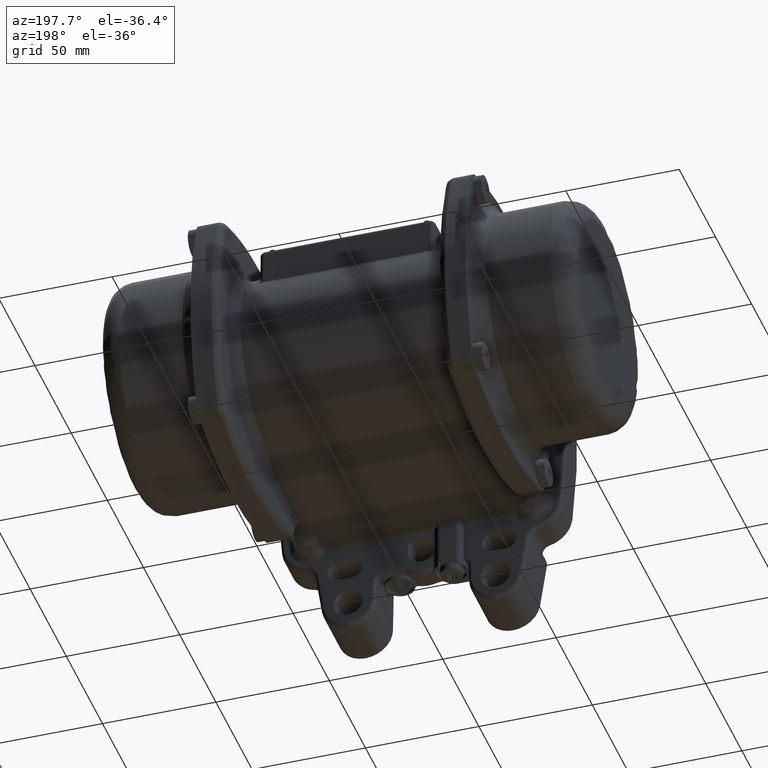
[diagram: clean part render]
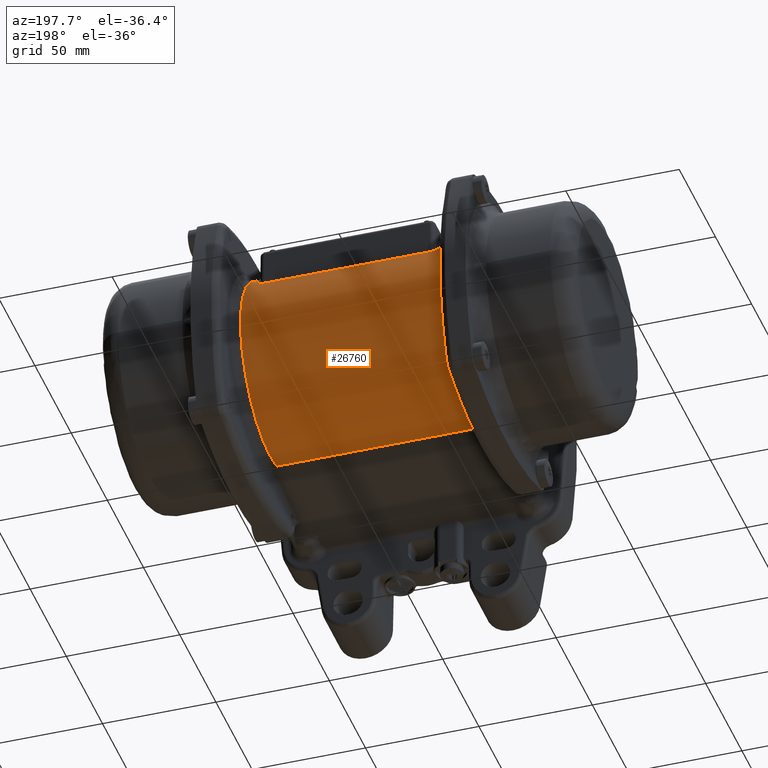
[diagram: same view with one face highlighted and labeled with its STEP entity id]
A machine part, auxiliary view. The second image highlights one B-rep face of the part: STEP entity #26760.
In plain terms, the highlighted cylindrical surface (partial cylindrical patch) has radius 41 mm, axis along (1, -0, -0).
Its self-contained STEP definition (entity closure, byte-faithful):
#649 = CARTESIAN_POINT ( 'NONE',  ( -38.60708220774924400, -0.9340773882883759400, 40.99999999999997900 ) ) ;
#1771 = CARTESIAN_POINT ( 'NONE',  ( -39.45027125699233000, 7.287984657818571900, 40.35493857515928100 ) ) ;
#1824 = AXIS2_PLACEMENT_3D ( 'NONE', #27214, #128052, #70123 ) ;
#2017 = B_SPLINE_CURVE_WITH_KNOTS ( 'NONE', 3,
 ( #46109, #89569, #132009, #4394, #18646, #59820, #130798, #3185, #102736, #60430, #159943, #74707, #77164, #21121, #62864, #164222, #21739, #162376, #64716, #36069, #178534, #78393, #163005, #93266, #78998, #120724, #49777, #133809, #8040, #121349, #177293, #106399, #176685, #107591, #135663, #22354, #79632 ),
 .UNSPECIFIED., .F., .F.,
 ( 4, 2, 2, 1, 1, 1, 1, 1, 2, 2, 2, 1, 1, 1, 1, 1, 2, 2, 2, 2, 2, 1, 2, 4 ),
 ( 0.0000000000000000000, 0.1250000000000511000, 0.1875000000000764900, 0.2187500000000893700, 0.2343750000000957800, 0.2421875000000988900, 0.2460937500001007500, 0.2480468750001017800, 0.2490234375001018900, 0.2500000000001019700, 0.3750000000001117400, 0.4375000000001166300, 0.4687500000001190700, 0.4843750000001204000, 0.4921875000001209000, 0.4960937500001212900, 0.4980468750001213500, 0.5000000000001213500, 0.6250000000000900400, 0.6875000000000741600, 0.7031250000000703900, 0.7187500000000665000, 0.7500000000000588400, 1.000000000000000000 ),
 .UNSPECIFIED. ) ;
#2258 = B_SPLINE_CURVE_WITH_KNOTS ( 'NONE', 3,
 ( #96974, #167316, #83312, #169142, #68403, #183511, #98215, #124494, #84545, #70242, #25471, #125099, #67801, #12986, #126934, #95771 ),
 .UNSPECIFIED., .F., .F.,
 ( 4, 2, 2, 1, 1, 1, 1, 2, 2, 4 ),
 ( 0.0000000000000000000, 0.2499999999999787900, 0.3749999999999680800, 0.4374999999999630300, 0.4687499999999606400, 0.4843749999999595900, 0.4921874999999581400, 0.4960937499999577600, 0.4999999999999573700, 1.000000000000000000 ),
 .UNSPECIFIED. ) ;
#2288 = CARTESIAN_POINT ( 'NONE',  ( -39.71057046456030500, -8.626517569722269100, 40.08229354704110400 ) ) ;
#3185 = CARTESIAN_POINT ( 'NONE',  ( 38.73754287274762500, -2.051644284662081500, 40.94865646563531000 ) ) ;
#3397 = CARTESIAN_POINT ( 'NONE',  ( 39.69347731338803000, -8.544330602705279900, 40.09980566725569400 ) ) ;
#3555 = EDGE_CURVE ( 'NONE', #75312, #170911, #2017, .T. ) ;
#4090 = CARTESIAN_POINT ( 'NONE',  ( -40.25993453157548900, 11.75081116651704400, 39.28000129041638600 ) ) ;
#4394 = CARTESIAN_POINT ( 'NONE',  ( 38.66658297917581400, -1.445213444509238200, 40.97491586174172100 ) ) ;
#4418 = CARTESIAN_POINT ( 'NONE',  ( -36.63564336271020500, 33.02453798264286900, 24.29773427776708800 ) ) ;
#4927 = CARTESIAN_POINT ( 'NONE',  ( -39.12898374515355500, 32.17546672250782800, 25.41140731056852800 ) ) ;
#5559 = CARTESIAN_POINT ( 'NONE',  ( -39.00835738963211700, 32.26881057474589900, 25.29311772478809300 ) ) ;
#6764 = CARTESIAN_POINT ( 'NONE',  ( -38.63982266128448400, 32.50285782251592800, 24.99138136832928600 ) ) ;
#7620 = CARTESIAN_POINT ( 'NONE',  ( 37.19832322529099100, 32.98694223160909200, 24.34875545878459500 ) ) ;
#8040 = CARTESIAN_POINT ( 'NONE',  ( 39.21495667097355000, -5.757405661419554100, 40.59407596242783700 ) ) ;
#8221 = CARTESIAN_POINT ( 'NONE',  ( 36.63564336271021900, 33.02453798264285500, 24.29773427776707000 ) ) ;
#8841 = CARTESIAN_POINT ( 'NONE',  ( 39.09204151790564900, 32.20395850700653300, 25.37528973501602500 ) ) ;
#8844 = CARTESIAN_POINT ( 'NONE',  ( -40.57475486878562500, 27.07420599103590000, 30.93370843594886900 ) ) ;
#9434 = CARTESIAN_POINT ( 'NONE',  ( -39.44847065372786700, -7.278032643407048100, 40.35686584913624100 ) ) ;
#9464 = CARTESIAN_POINT ( 'NONE',  ( 40.59838397106191400, 29.62483085586199000, 28.35111769623385000 ) ) ;
#9522 = CARTESIAN_POINT ( 'NONE',  ( 44.14511888885273500, -8.790728436023332600, -40.04651162790698000 ) ) ;
#10051 = CARTESIAN_POINT ( 'NONE',  ( -39.22247937615304600, -5.809387017558180800, 40.58677639094410200 ) ) ;
#10431 = CARTESIAN_POINT ( 'NONE',  ( 39.27415188788697300, 6.156027150346739400, 40.53521307871455500 ) ) ;
#10667 = CARTESIAN_POINT ( 'NONE',  ( -39.29157628440914600, -6.271409692527957900, 40.51767199528990200 ) ) ;
#10693 = LINE ( 'NONE', #42279, #166558 ) ;
#11637 = CARTESIAN_POINT ( 'NONE',  ( 39.29161728950060700, 6.271678657600948400, 40.51763032736632700 ) ) ;
#11742 = CARTESIAN_POINT ( 'NONE',  ( -39.06737950640841500, 4.700115830812914700, 40.73162303545759500 ) ) ;
#11832 = VERTEX_POINT ( 'NONE', #13359 ) ;
#12264 = CARTESIAN_POINT ( 'NONE',  ( 39.30906355492928100, 6.385195820743160900, 40.49986878538031500 ) ) ;
#12363 = CARTESIAN_POINT ( 'NONE',  ( -38.68570407094574600, 1.609515190667632400, 40.96866651549448300 ) ) ;
#12497 = CARTESIAN_POINT ( 'NONE',  ( -38.76089191830179500, -2.247015252834524200, 40.93839322025121400 ) ) ;
#12570 = DIRECTION ( 'NONE',  ( 1.000000000000000000, -2.784061241712093500E-016, -1.387778780781444600E-017 ) ) ;
#12972 = CARTESIAN_POINT ( 'NONE',  ( -39.01482737209057900, 4.297168353314922300, 40.77418753368952800 ) ) ;
#12986 = CARTESIAN_POINT ( 'NONE',  ( 40.13163243657442800, 10.80252752720041300, 39.56465057074500200 ) ) ;
#13359 = CARTESIAN_POINT ( 'NONE',  ( -38.49999999999998600, -1.257183224816079200E-013, 40.99999999999998600 ) ) ;
#13551 = VECTOR ( 'NONE', #113343, 1000.000000000000000 ) ;
#14324 = CARTESIAN_POINT ( 'NONE',  ( -38.75113301028474700, -2.164786475184294500, 40.94281023096501600 ) ) ;
#14733 = CARTESIAN_POINT ( 'NONE',  ( -39.69347731338807300, -8.544330602705263900, 40.09980566725569400 ) ) ;
#15331 = CARTESIAN_POINT ( 'NONE',  ( 38.79210752469145300, 2.508782898045377200, 40.92338156037178700 ) ) ;
#18258 = EDGE_CURVE ( 'NONE', #106841, #99078, #178094, .T. ) ;
#18646 = CARTESIAN_POINT ( 'NONE',  ( 38.68570407423676000, -1.609515218935069900, 40.96866651436524600 ) ) ;
#19401 = CARTESIAN_POINT ( 'NONE',  ( 40.50857455859753700, 14.98236234376840400, 38.16449683410000700 ) ) ;
#19826 = CARTESIAN_POINT ( 'NONE',  ( -38.46142291735794300, 32.59652106300797000, 24.86899380024934900 ) ) ;
#20206 = CARTESIAN_POINT ( 'NONE',  ( -40.26286705446739900, 11.77235702724718700, 39.27354965194230400 ) ) ;
#20253 = VERTEX_POINT ( 'NONE', #27524 ) ;
#20798 = CIRCLE ( 'NONE', #1824, 40.99999999999997900 ) ;
#21066 = CARTESIAN_POINT ( 'NONE',  ( -36.63564336271020500, 33.02453798264286900, 24.29773427776708800 ) ) ;
#21121 = CARTESIAN_POINT ( 'NONE',  ( 38.74975827312260200, -2.154940588891327100, 40.94332962552280000 ) ) ;
#21314 = CARTESIAN_POINT ( 'NONE',  ( 37.88174637271190900, 32.83467384047703100, 24.55384244578916200 ) ) ;
#21490 = VECTOR ( 'NONE', #70372, 1000.000000000000000 ) ;
#21739 = CARTESIAN_POINT ( 'NONE',  ( 38.90979390786052500, -3.473589406481656800, 40.85298588975653900 ) ) ;
#22354 = CARTESIAN_POINT ( 'NONE',  ( 39.57239271841103100, -7.968513426987492200, 40.22249883831182200 ) ) ;
#22546 = CARTESIAN_POINT ( 'NONE',  ( 38.31520629861852000, 32.66625616399503700, 24.77734590616100600 ) ) ;
#23176 = CARTESIAN_POINT ( 'NONE',  ( 39.61899912587594500, 31.72000177052054700, 25.97771781145410200 ) ) ;
#23800 = CARTESIAN_POINT ( 'NONE',  ( 39.65083779141532700, 31.68435636038741900, 26.02118101066755800 ) ) ;
#24374 = CARTESIAN_POINT ( 'NONE',  ( -39.25553339753611200, -6.032019540604348000, 40.55388530464047400 ) ) ;
#24964 = CARTESIAN_POINT ( 'NONE',  ( -39.26450961562329700, -6.091941491601558000, 40.54489676008290600 ) ) ;
#25357 = CARTESIAN_POINT ( 'NONE',  ( 39.01778356756366900, 4.319833396682680500, 40.77179267318739200 ) ) ;
#25435 = CARTESIAN_POINT ( 'NONE',  ( 70.50000000000000000, -2.039534987732066000E-014, -9.783840404509176200E-016 ) ) ;
#25455 = CARTESIAN_POINT ( 'NONE',  ( -38.79746280871717100, 2.557511731065350800, 40.92211062113733500 ) ) ;
#25471 = CARTESIAN_POINT ( 'NONE',  ( 40.26977654820432700, 11.82354501429634800, 39.25816953174909700 ) ) ;
#26066 = CARTESIAN_POINT ( 'NONE',  ( -39.21495667130652400, 5.757405663960582800, 40.59407596206114000 ) ) ;
#26760 = ADVANCED_FACE ( 'NONE', ( #84982 ), #151813, .T. ) ;
#26984 = LINE ( 'NONE', #184278, #13551 ) ;
#27214 = CARTESIAN_POINT ( 'NONE',  ( 44.14511888885273500, -1.305798957417314100E-014, -6.126365926902397800E-016 ) ) ;
#27215 = CARTESIAN_POINT ( 'NONE',  ( 39.57147129445984000, 7.964131609964170800, 40.22343250102324700 ) ) ;
#27524 = CARTESIAN_POINT ( 'NONE',  ( 39.69347731338784500, 8.544330602705320700, 40.09980566725569400 ) ) ;
#28548 = CARTESIAN_POINT ( 'NONE',  ( -39.24477876744990800, 5.959605327242024400, 40.56457536500374800 ) ) ;
#29290 = CARTESIAN_POINT ( 'NONE',  ( -38.77135033993121000, -2.334932738104302800, 40.93351311541709200 ) ) ;
#30279 = CARTESIAN_POINT ( 'NONE',  ( 38.76088447942417000, 2.246952659668281600, 40.93839666203243900 ) ) ;
#30377 = CARTESIAN_POINT ( 'NONE',  ( -39.31171813620748900, 6.402298441943920600, 40.49716667674795200 ) ) ;
#30667 = B_SPLINE_CURVE_WITH_KNOTS ( 'NONE', 3,
 ( #39945, #38721, #9434, #182400, #10667, #125839, #51775, #66095, #24964, #24374, #10051, #38101, #179943, #109625, #67306, #166829, #181162, #54825, #55443, #84063, #69134, #154380, #170503, #169883, #56677, #98966, #168647, #29290, #12497, #183624, #142539, #171119, #14324, #84652, #126458, #649, #128892 ),
 .UNSPECIFIED., .F., .F.,
 ( 4, 2, 1, 2, 2, 1, 1, 1, 2, 1, 1, 1, 1, 2, 2, 2, 2, 1, 1, 1, 1, 1, 2, 2, 4 ),
 ( 0.0000000000000000000, 0.2500000000000099400, 0.2812500000000111600, 0.2851562500000113200, 0.2890625000000114900, 0.2968750000000118200, 0.3125000000000121000, 0.3750000000000142100, 0.4375000000000163800, 0.4687500000000174900, 0.4843750000000180400, 0.4921875000000180400, 0.4960937500000180400, 0.4980468750000178200, 0.5000000000000175400, 0.6249999999999970000, 0.6874999999999867900, 0.7187499999999815700, 0.7343749999999790200, 0.7421874999999779100, 0.7460937499999774600, 0.7480468749999773500, 0.7490234374999773500, 0.7499999999999773500, 1.000000000000000000 ),
 .UNSPECIFIED. ) ;
#30818 = VERTEX_POINT ( 'NONE', #85125 ) ;
#31107 = CARTESIAN_POINT ( 'NONE',  ( -39.69651290171216100, 31.63165759376250500, 26.08521686242807600 ) ) ;
#32081 = CARTESIAN_POINT ( 'NONE',  ( -40.17375410760075000, 11.15529437300573100, 39.45348277531642400 ) ) ;
#32817 = B_SPLINE_CURVE_WITH_KNOTS ( 'NONE', 3,
 ( #138647, #27215, #41520, #12264, #11637, #10431, #110010, #111836, #110622, #152948, #53378, #139859, #126227, #154140, #40907, #167198, #111231, #81981, #181547, #25357, #124987, #39725, #55205, #154753, #169029, #83825, #15331, #114918, #30279, #42732, #128662, #170261, #113048, #142306, #127424, #114283, #157206 ),
 .UNSPECIFIED., .F., .F.,
 ( 4, 2, 1, 2, 2, 1, 1, 1, 2, 1, 1, 1, 1, 2, 2, 2, 2, 1, 1, 1, 1, 1, 2, 2, 4 ),
 ( 0.0000000000000000000, 0.2499999999999867300, 0.2812499999999851200, 0.2851562499999854000, 0.2890624999999857300, 0.2968749999999862300, 0.3124999999999874000, 0.3749999999999912800, 0.4374999999999952300, 0.4687499999999973400, 0.4843749999999985000, 0.4921874999999991100, 0.4960937499999994400, 0.4980468749999994400, 0.4999999999999994400, 0.6250000000000087700, 0.6875000000000134300, 0.7187500000000155400, 0.7343750000000165400, 0.7421875000000171000, 0.7460937500000174300, 0.7480468750000175400, 0.7490234375000177600, 0.7500000000000178700, 1.000000000000000000 ),
 .UNSPECIFIED. ) ;
#33307 = CARTESIAN_POINT ( 'NONE',  ( -39.92647421244653600, 9.695864949478997000, 39.84094083127503400 ) ) ;
#33476 = CARTESIAN_POINT ( 'NONE',  ( -39.69347731338805800, 8.544330602705292300, 40.09980566725569400 ) ) ;
#33539 = CARTESIAN_POINT ( 'NONE',  ( -37.94852506852241400, 32.81064710075123300, 24.58583290489226400 ) ) ;
#34159 = CARTESIAN_POINT ( 'NONE',  ( -37.61025059253405100, 32.90792599897423500, 24.45543841075616200 ) ) ;
#35028 = CARTESIAN_POINT ( 'NONE',  ( -40.51767814303129000, 17.51601659702738800, 37.16985183088752400 ) ) ;
#35642 = CARTESIAN_POINT ( 'NONE',  ( 39.35850370813031400, 31.98634657025034800, 25.64968077611050400 ) ) ;
#36069 = CARTESIAN_POINT ( 'NONE',  ( 38.99795572375313700, -4.167308703747819400, 40.78769909457645300 ) ) ;
#36727 = CARTESIAN_POINT ( 'NONE',  ( 39.74475676690480700, -8.790728436023330900, 40.04651162790698000 ) ) ;
#36974 = CARTESIAN_POINT ( 'NONE',  ( -40.59418964722900800, 29.17134930590384200, 28.81028253372296900 ) ) ;
#37321 = CARTESIAN_POINT ( 'NONE',  ( 40.57475486878562500, 27.07420599103744500, 30.93370843594727400 ) ) ;
#37498 = CARTESIAN_POINT ( 'NONE',  ( 38.67240964777513300, 32.48577692673543300, 25.01375181052317800 ) ) ;
#37501 = CARTESIAN_POINT ( 'NONE',  ( -40.59418964722900800, 29.17134930590384200, 28.81028253372296900 ) ) ;
#38101 = CARTESIAN_POINT ( 'NONE',  ( -39.16762067718053700, -5.429145660511761800, 40.64009700688113500 ) ) ;
#38575 = CARTESIAN_POINT ( 'NONE',  ( 40.51767814303131800, 17.51601659702942000, 37.16985183088672800 ) ) ;
#38721 = CARTESIAN_POINT ( 'NONE',  ( -39.57145704133638000, -7.964063827614246800, 40.22344694385650900 ) ) ;
#38997 = B_SPLINE_CURVE_WITH_KNOTS ( 'NONE', 3,
 ( #72824, #171734, #117589, #115159, #144374, #172350, #101444, #158667, #173557, #172966, #87704, #102063, #116381, #31107, #59759, #88307, #47874, #147428, #175377, #106345, #146819, #105111, #148064, #4927, #5559, #90139, #77721, #6764, #177241, #49109, #19826, #89510, #160503, #176006, #90752, #33539, #47257, #91964, #103881, #120665, #34159, #60979, #118210, #21066 ),
 .UNSPECIFIED., .F., .F.,
 ( 4, 1, 1, 2, 2, 2, 1, 1, 1, 2, 2, 2, 1, 1, 2, 2, 2, 1, 1, 1, 2, 2, 2, 1, 1, 2, 2, 4 ),
 ( 0.0000000000000000000, 0.1250000000000033600, 0.1875000000000045800, 0.2187500000000052200, 0.2500000000000058300, 0.3750000000000082700, 0.4375000000000091600, 0.4687500000000091000, 0.4843750000000087200, 0.4921875000000073300, 0.5000000000000058800, 0.5624999999999813500, 0.5937499999999691400, 0.6093749999999635800, 0.6171874999999620300, 0.6249999999999604800, 0.6874999999999507100, 0.7187499999999458200, 0.7343749999999433800, 0.7421874999999432700, 0.7460937499999434900, 0.7499999999999436000, 0.8124999999999628100, 0.8437499999999711300, 0.8593749999999759100, 0.8671874999999773500, 0.8749999999999787900, 1.000000000000000000 ),
 .UNSPECIFIED. ) ;
#39426 = LINE ( 'NONE', #72827, #21490 ) ;
#39725 = CARTESIAN_POINT ( 'NONE',  ( 38.97575799406113400, 3.997614464274982900, 40.80583510462895400 ) ) ;
#39945 = CARTESIAN_POINT ( 'NONE',  ( -39.69347731338807300, -8.544330602705263900, 40.09980566725569400 ) ) ;
#40907 = CARTESIAN_POINT ( 'NONE',  ( 39.06099969178014000, 4.648038183373663500, 40.73588216817101000 ) ) ;
#41005 = CARTESIAN_POINT ( 'NONE',  ( -38.74392969543831800, 2.105701051483206400, 40.94589633517638600 ) ) ;
#41298 = ORIENTED_EDGE ( 'NONE', *, *, #75892, .T. ) ;
#41520 = CARTESIAN_POINT ( 'NONE',  ( 39.44849759882140500, 7.278181499583124200, 40.35683710852317300 ) ) ;
#41990 = EDGE_CURVE ( 'NONE', #87641, #11832, #30667, .T. ) ;
#42228 = CARTESIAN_POINT ( 'NONE',  ( -38.73754287176370800, 2.051644276234249300, 40.94865646606061900 ) ) ;
#42279 = CARTESIAN_POINT ( 'NONE',  ( 70.50000000000000000, -8.790728436023361100, -40.04651162790698000 ) ) ;
#42732 = CARTESIAN_POINT ( 'NONE',  ( 38.75563417156801200, 2.202736153180403300, 40.94078937609189900 ) ) ;
#44671 = CARTESIAN_POINT ( 'NONE',  ( -39.28860164782581400, 6.252183757084171800, 40.52072086570232300 ) ) ;
#46109 = CARTESIAN_POINT ( 'NONE',  ( 38.49999999999876400, -1.566433935815058200E-011, 40.99999999999998600 ) ) ;
#47207 = ORIENTED_EDGE ( 'NONE', *, *, #91563, .T. ) ;
#47257 = CARTESIAN_POINT ( 'NONE',  ( -37.84249337173225300, 32.84530427431204900, 24.53952135662269600 ) ) ;
#47874 = CARTESIAN_POINT ( 'NONE',  ( -39.57597112766583800, 31.76970378868847100, 25.91732742592306600 ) ) ;
#49064 = EDGE_CURVE ( 'NONE', #134206, #135680, #38997, .T. ) ;
#49109 = CARTESIAN_POINT ( 'NONE',  ( -38.48396794957381000, 32.58523095825459800, 24.88378980366828200 ) ) ;
#49777 = CARTESIAN_POINT ( 'NONE',  ( 39.11745811475276500, -5.069913957446243700, 40.68683160676714300 ) ) ;
#49977 = CARTESIAN_POINT ( 'NONE',  ( 39.58758038956668200, 31.75459740881647600, 25.93545537517492100 ) ) ;
#50571 = CARTESIAN_POINT ( 'NONE',  ( 36.95863281964187100, 33.01510764557542600, 24.31056700046104200 ) ) ;
#51185 = CARTESIAN_POINT ( 'NONE',  ( 38.55479190938039800, 32.55089507741892900, 24.92887488330063700 ) ) ;
#51775 = CARTESIAN_POINT ( 'NONE',  ( -39.27022736886506500, -6.129988235297320300, 40.53915901801514100 ) ) ;
#51810 = CARTESIAN_POINT ( 'NONE',  ( 40.20716430864455800, 30.86466722911807300, 26.98918267815681600 ) ) ;
#53378 = CARTESIAN_POINT ( 'NONE',  ( 39.22252468042721300, 5.809699607041161500, 40.58673157787753600 ) ) ;
#54071 = CARTESIAN_POINT ( 'NONE',  ( -38.99795572340488500, 4.167308701076632500, 40.78769909485063700 ) ) ;
#54825 = CARTESIAN_POINT ( 'NONE',  ( -39.02175630782706900, -4.350248813407512600, 40.76856145336100200 ) ) ;
#55205 = CARTESIAN_POINT ( 'NONE',  ( 38.93339949477871900, 3.663612693261331500, 40.83756941394796800 ) ) ;
#55443 = CARTESIAN_POINT ( 'NONE',  ( -39.01934455250081900, -4.331788406593539700, 40.77052424928094600 ) ) ;
#56448 = ORIENTED_EDGE ( 'NONE', *, *, #140120, .T. ) ;
#56537 = CARTESIAN_POINT ( 'NONE',  ( -38.90979390658641500, 3.473589396696874500, 40.85298589058851300 ) ) ;
#56677 = CARTESIAN_POINT ( 'NONE',  ( -38.84430152115804400, -2.941112845759174200, 40.89482307228210100 ) ) ;
#56746 = CARTESIAN_POINT ( 'NONE',  ( -44.14511888885248700, 1.152255332767226000E-014, 6.126365926902362300E-016 ) ) ;
#59759 = CARTESIAN_POINT ( 'NONE',  ( -39.67758907607856900, 31.65371836832520100, 26.05844228551827200 ) ) ;
#59820 = CARTESIAN_POINT ( 'NONE',  ( 38.71180134995319800, -1.832679843225847300, 40.95908725049358900 ) ) ;
#60125 = CARTESIAN_POINT ( 'NONE',  ( -40.25678212843524100, 11.72772185596919700, 39.28690611677018300 ) ) ;
#60430 = CARTESIAN_POINT ( 'NONE',  ( 38.74705244126668200, -2.132093229958663500, 40.94452681870773600 ) ) ;
#60930 = EDGE_CURVE ( 'NONE', #20253, #75312, #32817, .T. ) ;
#60979 = CARTESIAN_POINT ( 'NONE',  ( -37.27685669276446800, 32.98737170721080500, 24.34849133747320900 ) ) ;
#61358 = CARTESIAN_POINT ( 'NONE',  ( -40.06913322481548800, 10.50506068130365600, 39.63232633775173500 ) ) ;
#62864 = CARTESIAN_POINT ( 'NONE',  ( 38.79746280956828000, -2.557511737602715700, 40.92211062079276500 ) ) ;
#63671 = CARTESIAN_POINT ( 'NONE',  ( 38.36613020877336300, 32.64260845908540900, 24.80847210103965500 ) ) ;
#64182 = EDGE_CURVE ( 'NONE', #99078, #114924, #175220, .T. ) ;
#64716 = CARTESIAN_POINT ( 'NONE',  ( 38.97962795830320500, -4.025285657031178100, 40.80206915485068500 ) ) ;
#64899 = CARTESIAN_POINT ( 'NONE',  ( 37.73933545500232600, 32.87702601550262900, 24.49703127082625200 ) ) ;
#65765 = CARTESIAN_POINT ( 'NONE',  ( 36.63564336271021900, 33.02453798264285500, 24.29773427776707000 ) ) ;
#65795 = EDGE_CURVE ( 'NONE', #102133, #77358, #119795, .T. ) ;
#65955 = CARTESIAN_POINT ( 'NONE',  ( 40.52936452596748000, 20.01257850012938300, 35.89759467167983300 ) ) ;
#66095 = CARTESIAN_POINT ( 'NONE',  ( -39.26899130549735200, -6.121769849599544100, 40.54040003520255900 ) ) ;
#66124 = CARTESIAN_POINT ( 'NONE',  ( 39.21715071614202200, 32.10707084959152300, 25.49806103833568800 ) ) ;
#67306 = CARTESIAN_POINT ( 'NONE',  ( -39.06095172442108100, -4.647678009762064000, 40.73592326796497800 ) ) ;
#67801 = CARTESIAN_POINT ( 'NONE',  ( 40.26587042212714400, 11.79453754510065300, 39.26689379822477100 ) ) ;
#68383 = CARTESIAN_POINT ( 'NONE',  ( -39.01159377879942300, 4.272345774852782400, 40.77679777028986800 ) ) ;
#68403 = CARTESIAN_POINT ( 'NONE',  ( 40.39957035397495100, 12.92751507669421900, 38.90971572985380800 ) ) ;
#69009 = CARTESIAN_POINT ( 'NONE',  ( -38.60405095665417000, 0.9057057852061738400, 40.99157455061544700 ) ) ;
#69134 = CARTESIAN_POINT ( 'NONE',  ( -39.01675838544924300, -4.311976641540055300, 40.77262416303801000 ) ) ;
#69580 = ORIENTED_EDGE ( 'NONE', *, *, #100330, .T. ) ;
#69625 = CARTESIAN_POINT ( 'NONE',  ( -38.94247976823263000, 3.734470512171344800, 40.83017932057840900 ) ) ;
#70123 = DIRECTION ( 'NONE',  ( -3.384826294588893400E-016, -1.000000000000000000, 1.387778780781445400E-017 ) ) ;
#70242 = CARTESIAN_POINT ( 'NONE',  ( 40.27346166412474600, 11.85103239660493000, 39.24988753556461100 ) ) ;
#70372 = DIRECTION ( 'NONE',  ( 1.000000000000000000, -2.784061241712093500E-016, -1.387778780781444600E-017 ) ) ;
#72824 = CARTESIAN_POINT ( 'NONE',  ( -40.59418964722900800, 29.17134930590384200, 28.81028253372296900 ) ) ;
#72827 = CARTESIAN_POINT ( 'NONE',  ( 70.50000000000000000, -8.790728436023394800, 40.04651162790697300 ) ) ;
#74707 = CARTESIAN_POINT ( 'NONE',  ( 38.74925394998562200, -2.150683500342752000, 40.94355338637890200 ) ) ;
#75143 = AXIS2_PLACEMENT_3D ( 'NONE', #56746, #12570, #112141 ) ;
#75312 = VERTEX_POINT ( 'NONE', #82297 ) ;
#75456 = VERTEX_POINT ( 'NONE', #85351 ) ;
#75892 = EDGE_CURVE ( 'NONE', #11832, #75456, #177598, .T. ) ;
#77164 = CARTESIAN_POINT ( 'NONE',  ( 38.74969164380711800, -2.154378077668985400, 40.94335915042103800 ) ) ;
#77358 = VERTEX_POINT ( 'NONE', #127442 ) ;
#77721 = CARTESIAN_POINT ( 'NONE',  ( -38.72664190934741400, 32.45193928551271500, 25.05743374785929900 ) ) ;
#77974 = CARTESIAN_POINT ( 'NONE',  ( 36.79770513274263500, 33.02449533550154800, 24.29779224210738100 ) ) ;
#78036 = EDGE_CURVE ( 'NONE', #170911, #102133, #142234, .T. ) ;
#78393 = CARTESIAN_POINT ( 'NONE',  ( 39.01159377889084800, -4.272345775553818100, 40.77679777021634800 ) ) ;
#78998 = CARTESIAN_POINT ( 'NONE',  ( 39.01531832866211100, -4.300935001730876700, 40.77379055528941600 ) ) ;
#79112 = CARTESIAN_POINT ( 'NONE',  ( -44.14511888885248700, -8.790728436023345100, -40.04651162790698000 ) ) ;
#79199 = CARTESIAN_POINT ( 'NONE',  ( 37.57628867659475700, 32.91603437686433200, 24.44452359373452000 ) ) ;
#79632 = CARTESIAN_POINT ( 'NONE',  ( 39.69347731338803000, -8.544330602705279900, 40.09980566725569400 ) ) ;
#79821 = CARTESIAN_POINT ( 'NONE',  ( -40.55790288884463000, 24.79180279114828500, 32.77967534617861400 ) ) ;
#80406 = CARTESIAN_POINT ( 'NONE',  ( 38.41862333843148000, 32.61761323385056200, 24.84132557875212700 ) ) ;
#81981 = CARTESIAN_POINT ( 'NONE',  ( 39.02180376701514300, 4.350611745780669900, 40.76852272465338000 ) ) ;
#82297 = CARTESIAN_POINT ( 'NONE',  ( 38.49999999999876400, -1.566433935815058200E-011, 40.99999999999998600 ) ) ;
#82535 = ORIENTED_EDGE ( 'NONE', *, *, #163267, .T. ) ;
#83312 = CARTESIAN_POINT ( 'NONE',  ( 40.48568153637666000, 13.99916491554892900, 38.54012336105555600 ) ) ;
#83825 = CARTESIAN_POINT ( 'NONE',  ( 38.80963063413598500, 2.654434679938590100, 40.91409482411890500 ) ) ;
#84063 = CARTESIAN_POINT ( 'NONE',  ( -39.01773618068588700, -4.319470335879222100, 40.77183113839951300 ) ) ;
#84525 = CARTESIAN_POINT ( 'NONE',  ( -38.72420389425873600, 1.938440367339110800, 40.95424382846325500 ) ) ;
#84545 = CARTESIAN_POINT ( 'NONE',  ( 40.28196053977174500, 11.91502677794656000, 39.23053257910114400 ) ) ;
#84652 = CARTESIAN_POINT ( 'NONE',  ( -38.75061415334835100, -2.160409426554608100, 40.94304135026428100 ) ) ;
#84982 = FACE_OUTER_BOUND ( 'NONE', #90419, .T. ) ;
#85125 = CARTESIAN_POINT ( 'NONE',  ( -39.74475676690480700, -8.790728436023322000, 40.04651162790698000 ) ) ;
#85351 = CARTESIAN_POINT ( 'NONE',  ( -39.69347731338805800, 8.544330602705292300, 40.09980566725569400 ) ) ;
#87641 = VERTEX_POINT ( 'NONE', #107230 ) ;
#87704 = CARTESIAN_POINT ( 'NONE',  ( -39.91146514684459100, 31.36002208072125100, 26.41183888679517700 ) ) ;
#87732 = VERTEX_POINT ( 'NONE', #9522 ) ;
#88307 = CARTESIAN_POINT ( 'NONE',  ( -39.66876253561202500, 31.66390326768304300, 26.04606635680309900 ) ) ;
#89282 = CARTESIAN_POINT ( 'NONE',  ( -40.20273372279198300, 11.34631235784955000, 39.39912621526995200 ) ) ;
#89510 = CARTESIAN_POINT ( 'NONE',  ( -38.44636622222355300, 32.60400248936832000, 24.85918461497133700 ) ) ;
#89569 = CARTESIAN_POINT ( 'NONE',  ( 38.55547130262151300, -0.4838758530441310000, 40.99999999999999300 ) ) ;
#89895 = CARTESIAN_POINT ( 'NONE',  ( -40.26202916998365600, 11.76619239491469000, 39.27539663672546100 ) ) ;
#90139 = CARTESIAN_POINT ( 'NONE',  ( -38.89771973438712400, 32.34563492509748500, 25.19470775714944800 ) ) ;
#90419 = EDGE_LOOP ( 'NONE', ( #47207, #97932, #158683, #154989, #164431, #82535, #144242, #118922, #124380, #69580, #100756, #41298, #98443, #56448, #158107, #131299, #121394, #144443 ) ) ;
#90752 = CARTESIAN_POINT ( 'NONE',  ( -38.15868265100697000, 32.73544412034569700, 24.68598123293866900 ) ) ;
#90907 = CARTESIAN_POINT ( 'NONE',  ( 39.71057046456032000, -8.626517569722292200, 40.08229354704110400 ) ) ;
#91563 = EDGE_CURVE ( 'NONE', #114924, #20253, #2258, .T. ) ;
#91613 = CARTESIAN_POINT ( 'NONE',  ( -40.50857455859753700, 14.98236234376841800, 38.16449683410000700 ) ) ;
#91964 = CARTESIAN_POINT ( 'NONE',  ( -37.71712214076836700, 32.88064140978099200, 24.49211846110659600 ) ) ;
#92215 = CARTESIAN_POINT ( 'NONE',  ( 40.35478098115199700, 30.51773369054473400, 27.38009347790201200 ) ) ;
#93212 = EDGE_CURVE ( 'NONE', #87732, #150028, #10693, .T. ) ;
#93266 = CARTESIAN_POINT ( 'NONE',  ( 39.01482737211703300, -4.297168353517556700, 40.77418753366815500 ) ) ;
#94075 = CARTESIAN_POINT ( 'NONE',  ( 40.34411411895463600, 30.54569993706294200, 27.34889142174936100 ) ) ;
#94519 = CARTESIAN_POINT ( 'NONE',  ( 40.50857455859753700, 14.98236234376840400, 38.16449683410000700 ) ) ;
#94698 = CARTESIAN_POINT ( 'NONE',  ( 40.52185708439394300, 30.06477479521623400, 27.88397324132387900 ) ) ;
#95771 = CARTESIAN_POINT ( 'NONE',  ( 39.69347731338784500, 8.544330602705320700, 40.09980566725569400 ) ) ;
#96477 = AXIS2_PLACEMENT_3D ( 'NONE', #25435, #139334, #98174 ) ;
#96960 = CARTESIAN_POINT ( 'NONE',  ( -39.01531832865487100, 4.300935001675354000, 40.77379055529527800 ) ) ;
#96974 = CARTESIAN_POINT ( 'NONE',  ( 40.50857455859753700, 14.98236234376840400, 38.16449683410000700 ) ) ;
#97399 = CARTESIAN_POINT ( 'NONE',  ( -44.14511888885249400, -8.790728436023345100, 40.04651162790698000 ) ) ;
#97932 = ORIENTED_EDGE ( 'NONE', *, *, #60930, .T. ) ;
#98174 = DIRECTION ( 'NONE',  ( -3.384826294588893400E-016, -1.000000000000000000, 1.387778780781445400E-017 ) ) ;
#98193 = CARTESIAN_POINT ( 'NONE',  ( -38.74925394990820800, 2.150683499704208100, 40.94355338641246100 ) ) ;
#98215 = CARTESIAN_POINT ( 'NONE',  ( 40.33016140496783900, 12.29499718550254400, 39.11358691685030200 ) ) ;
#98443 = ORIENTED_EDGE ( 'NONE', *, *, #143226, .T. ) ;
#98966 = CARTESIAN_POINT ( 'NONE',  ( -38.80962712987558700, -2.654405643985744400, 40.91409665871118100 ) ) ;
#99078 = VERTEX_POINT ( 'NONE', #172045 ) ;
#100330 = EDGE_CURVE ( 'NONE', #30818, #87641, #151723, .T. ) ;
#100756 = ORIENTED_EDGE ( 'NONE', *, *, #41990, .T. ) ;
#101295 = CARTESIAN_POINT ( 'NONE',  ( -39.26544870706784000, 6.098312159257965900, 40.54396776341851400 ) ) ;
#101444 = CARTESIAN_POINT ( 'NONE',  ( -40.38268988185586000, 30.44233417150039500, 27.46399404411277700 ) ) ;
#102063 = CARTESIAN_POINT ( 'NONE',  ( -39.78893236007552000, 31.52010670824097400, 26.22006028976246800 ) ) ;
#102133 = VERTEX_POINT ( 'NONE', #36727 ) ;
#102736 = CARTESIAN_POINT ( 'NONE',  ( 38.74392969594814700, -2.105701055837115600, 40.94589633495167600 ) ) ;
#103630 = CARTESIAN_POINT ( 'NONE',  ( -40.24935340241219700, 11.67372449328843400, 39.30300210004112700 ) ) ;
#103881 = CARTESIAN_POINT ( 'NONE',  ( -37.66303427363193600, 32.89469899979807400, 24.47322692739061300 ) ) ;
#104254 = CARTESIAN_POINT ( 'NONE',  ( -40.42364083761190600, 12.95904473300386800, 38.91753369444673900 ) ) ;
#105111 = CARTESIAN_POINT ( 'NONE',  ( -39.16450638856289900, 32.14739839231123100, 25.44690588499861400 ) ) ;
#106345 = CARTESIAN_POINT ( 'NONE',  ( -39.28441486747254200, 32.04868363796531800, 25.57125606127807800 ) ) ;
#106399 = CARTESIAN_POINT ( 'NONE',  ( 39.26544870701128100, -6.098312158985947900, 40.54396776345921400 ) ) ;
#106841 = VERTEX_POINT ( 'NONE', #65765 ) ;
#107102 = CARTESIAN_POINT ( 'NONE',  ( 39.72766361573257400, -8.708650698349968500, 40.06452875532207300 ) ) ;
#107176 = CARTESIAN_POINT ( 'NONE',  ( 38.40000074621036700, 32.62659257246208700, 24.82953145171647300 ) ) ;
#107230 = CARTESIAN_POINT ( 'NONE',  ( -39.69347731338807300, -8.544330602705263900, 40.09980566725569400 ) ) ;
#107591 = CARTESIAN_POINT ( 'NONE',  ( 39.31171813596772300, -6.402298440792472800, 40.49716667692940300 ) ) ;
#107776 = CARTESIAN_POINT ( 'NONE',  ( 37.55500590588283000, 32.92097308486702200, 24.43787196137795100 ) ) ;
#108402 = CARTESIAN_POINT ( 'NONE',  ( 39.81433497817858600, 31.49764609426727800, 26.24833091797965400 ) ) ;
#109040 = CARTESIAN_POINT ( 'NONE',  ( 39.63982052113964700, 31.69679499576228600, 26.00602857050619600 ) ) ;
#109625 = CARTESIAN_POINT ( 'NONE',  ( -39.07995690440111500, -4.789351521282577000, 40.71941662503061100 ) ) ;
#109912 = VERTEX_POINT ( 'NONE', #97399 ) ;
#110010 = CARTESIAN_POINT ( 'NONE',  ( 39.27027021502998800, 6.130274106887594800, 40.53911578940790900 ) ) ;
#110622 = CARTESIAN_POINT ( 'NONE',  ( 39.26455275475487400, 6.092230577421884300, 40.54485332249610300 ) ) ;
#110728 = CARTESIAN_POINT ( 'NONE',  ( -38.55547130022903700, 0.4838758324695776000, 40.99999999999997900 ) ) ;
#111231 = CARTESIAN_POINT ( 'NONE',  ( 39.02742567424794400, 4.393568909582836700, 40.76392542533358200 ) ) ;
#111330 = CARTESIAN_POINT ( 'NONE',  ( -39.19080358749785400, 5.589873983011673700, 40.61753171091548600 ) ) ;
#111836 = CARTESIAN_POINT ( 'NONE',  ( 39.26903419124438000, 6.122056260107763500, 40.54035678476294200 ) ) ;
#112141 = DIRECTION ( 'NONE',  ( -3.384826294588893400E-016, -1.000000000000000000, 1.387778780781445400E-017 ) ) ;
#113048 = CARTESIAN_POINT ( 'NONE',  ( 38.75112335779062500, 2.164705053452563400, 40.94281453598593100 ) ) ;
#113343 = DIRECTION ( 'NONE',  ( 1.000000000000000000, -2.784061241712093500E-016, -1.387778780781444600E-017 ) ) ;
#113435 = CARTESIAN_POINT ( 'NONE',  ( -40.50857455859753700, 14.98236234376841800, 38.16449683410000700 ) ) ;
#114283 = CARTESIAN_POINT ( 'NONE',  ( 38.60707794063095100, 0.9340401635427623100, 41.00000000000000000 ) ) ;
#114918 = CARTESIAN_POINT ( 'NONE',  ( 38.77134526629796300, 2.334890171670551200, 40.93351556794317500 ) ) ;
#114924 = VERTEX_POINT ( 'NONE', #19401 ) ;
#115159 = CARTESIAN_POINT ( 'NONE',  ( -40.48349409111201400, 30.11935110221260800, 27.81851573835017200 ) ) ;
#116381 = CARTESIAN_POINT ( 'NONE',  ( -39.72468576889114200, 31.59844603284394500, 26.12547291908134300 ) ) ;
#117589 = CARTESIAN_POINT ( 'NONE',  ( -40.56890810312474100, 29.73571886849651900, 28.23063181775524200 ) ) ;
#118210 = CARTESIAN_POINT ( 'NONE',  ( -36.95852475144613400, 33.02445347177737000, 24.29784914165753300 ) ) ;
#118922 = ORIENTED_EDGE ( 'NONE', *, *, #141417, .T. ) ;
#119795 = LINE ( 'NONE', #179804, #150839 ) ;
#120665 = CARTESIAN_POINT ( 'NONE',  ( -37.62689628674533500, 32.90382974228294400, 24.46094942592641500 ) ) ;
#120724 = CARTESIAN_POINT ( 'NONE',  ( 39.06737950594513400, -4.700115827260753500, 40.73162303583282600 ) ) ;
#120915 = CARTESIAN_POINT ( 'NONE',  ( 39.02424990130153800, 32.25474217655328600, 25.31073802085706200 ) ) ;
#121349 = CARTESIAN_POINT ( 'NONE',  ( 39.24477876737027800, -5.959605326634638300, 40.56457536509338300 ) ) ;
#121394 = ORIENTED_EDGE ( 'NONE', *, *, #18258, .T. ) ;
#122155 = CARTESIAN_POINT ( 'NONE',  ( 38.19555711359514300, 32.71881069576693300, 24.70796525850464000 ) ) ;
#122794 = CARTESIAN_POINT ( 'NONE',  ( 39.06498901485159100, 32.22438733159094000, 25.34934188022659300 ) ) ;
#123279 = CIRCLE ( 'NONE', #75143, 40.99999999999997900 ) ;
#123696 = CARTESIAN_POINT ( 'NONE',  ( -39.74475676690480700, -8.790728436023322000, 40.04651162790698000 ) ) ;
#124380 = ORIENTED_EDGE ( 'NONE', *, *, #156569, .T. ) ;
#124494 = CARTESIAN_POINT ( 'NONE',  ( 40.29855937839633400, 12.04244441115471000, 39.19170363943096900 ) ) ;
#124987 = CARTESIAN_POINT ( 'NONE',  ( 39.01680586908214100, 4.312340610285156500, 40.77258566938006400 ) ) ;
#125083 = CARTESIAN_POINT ( 'NONE',  ( -38.97962795765300800, 4.025285652043519800, 40.80206915534714800 ) ) ;
#125099 = CARTESIAN_POINT ( 'NONE',  ( 40.26731030633667500, 11.80520648566728100, 39.26368795107516300 ) ) ;
#125839 = CARTESIAN_POINT ( 'NONE',  ( -39.27410937583899700, -6.155744358106203700, 40.53525602547053100 ) ) ;
#126227 = CARTESIAN_POINT ( 'NONE',  ( 39.11780978712901900, 5.068779177460607200, 40.68590160056754000 ) ) ;
#126458 = CARTESIAN_POINT ( 'NONE',  ( -38.69054234471668300, -1.653592050636270700, 40.96975970709485200 ) ) ;
#126917 = CARTESIAN_POINT ( 'NONE',  ( -38.66658297558606000, 1.445213413666397400, 40.97491586282956900 ) ) ;
#126934 = CARTESIAN_POINT ( 'NONE',  ( 39.94118160184114400, 9.722276822558363600, 39.84881288145150800 ) ) ;
#127424 = CARTESIAN_POINT ( 'NONE',  ( 38.69053480310838500, 1.653527197155998200, 40.96976210121123800 ) ) ;
#127442 = CARTESIAN_POINT ( 'NONE',  ( 44.14511888885273500, -8.790728436023320200, 40.04651162790698000 ) ) ;
#128052 = DIRECTION ( 'NONE',  ( -1.000000000000000000, 2.784061241712093500E-016, 1.387778780781444600E-017 ) ) ;
#128662 = CARTESIAN_POINT ( 'NONE',  ( 38.75300403903511900, 2.180565967328046200, 40.94197360444552900 ) ) ;
#128892 = CARTESIAN_POINT ( 'NONE',  ( -38.49999999999998600, -1.257183224816079200E-013, 40.99999999999998600 ) ) ;
#130798 = CARTESIAN_POINT ( 'NONE',  ( 38.72420389609269600, -1.938440383073103600, 40.95424382770728000 ) ) ;
#131299 = ORIENTED_EDGE ( 'NONE', *, *, #146248, .T. ) ;
#131721 = CARTESIAN_POINT ( 'NONE',  ( -40.23420347558304400, 11.56524031840713300, 39.33513135815162100 ) ) ;
#132009 = CARTESIAN_POINT ( 'NONE',  ( 38.60405096024314300, -0.9057058160616268100, 40.99157454993367400 ) ) ;
#132325 = CARTESIAN_POINT ( 'NONE',  ( -40.11312082205792300, 10.76875624677488100, 39.56141392190073000 ) ) ;
#133328 = CARTESIAN_POINT ( 'NONE',  ( 39.69347731338803000, -8.544330602705279900, 40.09980566725569400 ) ) ;
#133519 = CARTESIAN_POINT ( 'NONE',  ( -40.50857455859753700, 14.98236234376841800, 38.16449683410000700 ) ) ;
#133809 = CARTESIAN_POINT ( 'NONE',  ( 39.19080358703453700, -5.589873979473375200, 40.61753171140436100 ) ) ;
#134206 = VERTEX_POINT ( 'NONE', #36974 ) ;
#134315 = VERTEX_POINT ( 'NONE', #113435 ) ;
#135233 = CARTESIAN_POINT ( 'NONE',  ( 40.12599273551820300, 31.01637391747814100, 26.81431320464962600 ) ) ;
#135663 = CARTESIAN_POINT ( 'NONE',  ( 39.45027125632105200, -7.287984654600234300, 40.35493857570366300 ) ) ;
#135680 = VERTEX_POINT ( 'NONE', #4418 ) ;
#135858 = CARTESIAN_POINT ( 'NONE',  ( 39.94995430695932700, 31.31164769323837400, 26.47021143168277400 ) ) ;
#136285 = CARTESIAN_POINT ( 'NONE',  ( 40.59418964722537000, 29.17134930590386300, 28.81028253372292600 ) ) ;
#136901 = CARTESIAN_POINT ( 'NONE',  ( 40.55790288884465900, 24.79180279115096800, 32.77967534617657500 ) ) ;
#137079 = CARTESIAN_POINT ( 'NONE',  ( 39.51296350094912700, 31.83382503705026100, 25.83827440491814900 ) ) ;
#137704 = CARTESIAN_POINT ( 'NONE',  ( 38.92806945690206500, 32.32355971898738300, 25.22289466206168700 ) ) ;
#137990 = CARTESIAN_POINT ( 'NONE',  ( -39.72766361573256000, -8.708650698349945400, 40.06452875532207300 ) ) ;
#138647 = CARTESIAN_POINT ( 'NONE',  ( 39.69347731338784500, 8.544330602705320700, 40.09980566725569400 ) ) ;
#139334 = DIRECTION ( 'NONE',  ( 1.000000000000000000, -2.784061241712093500E-016, -1.387778780781444600E-017 ) ) ;
#139859 = CARTESIAN_POINT ( 'NONE',  ( 39.16766795090956800, 5.429482483777670500, 40.64005189596662100 ) ) ;
#140120 = EDGE_CURVE ( 'NONE', #134315, #134206, #172467, .T. ) ;
#141181 = CARTESIAN_POINT ( 'NONE',  ( -38.74705244100616100, 2.132093227746774600, 40.94452681882310700 ) ) ;
#141417 = EDGE_CURVE ( 'NONE', #150028, #109912, #123279, .T. ) ;
#141796 = CARTESIAN_POINT ( 'NONE',  ( -38.74975827312617600, 2.154940588942745100, 40.94332962552009300 ) ) ;
#142234 = B_SPLINE_CURVE_WITH_KNOTS ( 'NONE', 3,
 ( #133328, #90907, #107102, #146990 ),
 .UNSPECIFIED., .F., .F.,
 ( 4, 4 ),
 ( 0.0000000000000000000, 1.000000000000000000 ),
 .UNSPECIFIED. ) ;
#142306 = CARTESIAN_POINT ( 'NONE',  ( 38.75060432096487500, 2.160326476701167800, 40.94304572712663100 ) ) ;
#142460 = DIRECTION ( 'NONE',  ( -1.000000000000000000, 2.784061241712093500E-016, 1.387778780781444600E-017 ) ) ;
#142539 = CARTESIAN_POINT ( 'NONE',  ( -38.75301326454310000, -2.180643750871737100, 40.94196946123163600 ) ) ;
#142781 = B_SPLINE_CURVE_WITH_KNOTS ( 'NONE', 3,
 ( #156562, #176384, #33307, #61358, #132325, #32081, #89282, #131721, #103630, #60125, #4090, #89895, #20206, #104254, #160870, #133519 ),
 .UNSPECIFIED., .F., .F.,
 ( 4, 2, 2, 1, 1, 1, 1, 2, 2, 4 ),
 ( 0.0000000000000000000, 0.2500000000000250900, 0.3750000000000373000, 0.4375000000000434100, 0.4687500000000465700, 0.4843750000000480200, 0.4921875000000476300, 0.4960937500000468000, 0.5000000000000459600, 1.000000000000000000 ),
 .UNSPECIFIED. ) ;
#143226 = EDGE_CURVE ( 'NONE', #75456, #134315, #142781, .T. ) ;
#144242 = ORIENTED_EDGE ( 'NONE', *, *, #93212, .T. ) ;
#144247 = CARTESIAN_POINT ( 'NONE',  ( -39.57239271898642800, 7.968513429723770100, 40.22249883772876400 ) ) ;
#144374 = CARTESIAN_POINT ( 'NONE',  ( -40.43543221415440300, 30.28182774640417900, 27.64086355943337400 ) ) ;
#144443 = ORIENTED_EDGE ( 'NONE', *, *, #64182, .T. ) ;
#146248 = EDGE_CURVE ( 'NONE', #135680, #106841, #26984, .T. ) ;
#146819 = CARTESIAN_POINT ( 'NONE',  ( -39.20087255142351500, 32.11821273230678700, 25.48376238187829300 ) ) ;
#146990 = CARTESIAN_POINT ( 'NONE',  ( 39.74475676690480700, -8.790728436023330900, 40.04651162790698000 ) ) ;
#147428 = CARTESIAN_POINT ( 'NONE',  ( -39.48949120504436600, 31.85914423236042800, 25.80723362233839100 ) ) ;
#148064 = CARTESIAN_POINT ( 'NONE',  ( -39.14013732151681100, 32.16671989879051100, 25.42247772084201800 ) ) ;
#150028 = VERTEX_POINT ( 'NONE', #79112 ) ;
#150751 = CARTESIAN_POINT ( 'NONE',  ( 37.45632214680903600, 32.94259491859065700, 24.40872344440567000 ) ) ;
#150839 = VECTOR ( 'NONE', #151828, 1000.000000000000000 ) ;
#151368 = CARTESIAN_POINT ( 'NONE',  ( 37.51555366631205900, 32.92980007996716600, 24.42597636837954100 ) ) ;
#151723 = B_SPLINE_CURVE_WITH_KNOTS ( 'NONE', 3,
 ( #123696, #137990, #2288, #14733 ),
 .UNSPECIFIED., .F., .F.,
 ( 4, 4 ),
 ( 0.0000000000000000000, 1.000000000000000000 ),
 .UNSPECIFIED. ) ;
#151813 = CYLINDRICAL_SURFACE ( 'NONE', #96477, 40.99999999999997900 ) ;
#151828 = DIRECTION ( 'NONE',  ( 1.000000000000000000, -2.784061241712093500E-016, -1.387778780781444600E-017 ) ) ;
#152948 = CARTESIAN_POINT ( 'NONE',  ( 39.25557703068486100, 6.032313883531453600, 40.55384151668793900 ) ) ;
#153636 = CARTESIAN_POINT ( 'NONE',  ( -39.00705802404113600, 4.237474368175809600, 40.78044280558845700 ) ) ;
#154140 = CARTESIAN_POINT ( 'NONE',  ( 39.08000492938172200, 4.789708914659764900, 40.71937458216982000 ) ) ;
#154244 = CARTESIAN_POINT ( 'NONE',  ( -39.11745811538975900, 5.069913962319090700, 40.68683160615225300 ) ) ;
#154380 = CARTESIAN_POINT ( 'NONE',  ( -38.97571875210840600, -3.997306715726191700, 40.80586482531243300 ) ) ;
#154753 = CARTESIAN_POINT ( 'NONE',  ( 38.86694855080865100, 3.126339819139030600, 40.88102595014680000 ) ) ;
#154859 = CARTESIAN_POINT ( 'NONE',  ( -38.84329610805553300, 2.936337610212927300, 40.89629615665367600 ) ) ;
#154989 = ORIENTED_EDGE ( 'NONE', *, *, #78036, .T. ) ;
#156562 = CARTESIAN_POINT ( 'NONE',  ( -39.69347731338805800, 8.544330602705292300, 40.09980566725569400 ) ) ;
#156569 = EDGE_CURVE ( 'NONE', #109912, #30818, #39426, .T. ) ;
#157206 = CARTESIAN_POINT ( 'NONE',  ( 38.49999999999876400, -1.566433935815058200E-011, 40.99999999999998600 ) ) ;
#158107 = ORIENTED_EDGE ( 'NONE', *, *, #49064, .T. ) ;
#158667 = CARTESIAN_POINT ( 'NONE',  ( -40.28143841770564400, 30.71544085853124900, 27.16005433528975700 ) ) ;
#158683 = ORIENTED_EDGE ( 'NONE', *, *, #3555, .T. ) ;
#159943 = CARTESIAN_POINT ( 'NONE',  ( 38.74859614735551400, -2.145130274764815300, 40.94384496143083400 ) ) ;
#160503 = CARTESIAN_POINT ( 'NONE',  ( -38.43970844735768100, 32.60728819464080200, 24.85487483323573700 ) ) ;
#160870 = CARTESIAN_POINT ( 'NONE',  ( -40.50512790285646500, 14.02449187790861800, 38.54053120081233200 ) ) ;
#162376 = CARTESIAN_POINT ( 'NONE',  ( 38.94247976934730800, -3.734470520727089400, 40.83017931978306300 ) ) ;
#163005 = CARTESIAN_POINT ( 'NONE',  ( 39.01353437469983700, -4.287245362258093300, 40.77523209122187400 ) ) ;
#163179 = CARTESIAN_POINT ( 'NONE',  ( 37.31774314694062900, 32.96933649119400700, 24.37260474885718200 ) ) ;
#163267 = EDGE_CURVE ( 'NONE', #77358, #87732, #20798, .T. ) ;
#163804 = CARTESIAN_POINT ( 'NONE',  ( 40.59418964722537000, 29.17134930590386300, 28.81028253372292600 ) ) ;
#164222 = CARTESIAN_POINT ( 'NONE',  ( 38.84329610933045300, -2.936337620007973400, 40.89629615595039500 ) ) ;
#164406 = CARTESIAN_POINT ( 'NONE',  ( 40.32276329554005700, 30.59977598197237100, 27.28837401709433100 ) ) ;
#164431 = ORIENTED_EDGE ( 'NONE', *, *, #65795, .T. ) ;
#165014 = CARTESIAN_POINT ( 'NONE',  ( 39.10665653022187600, 32.19276214675090800, 25.38949195117113100 ) ) ;
#165635 = CARTESIAN_POINT ( 'NONE',  ( 40.28988110527408400, 30.68035641281265300, 27.19792386555639400 ) ) ;
#166558 = VECTOR ( 'NONE', #142460, 1000.000000000000000 ) ;
#166829 = CARTESIAN_POINT ( 'NONE',  ( -39.03859927769701700, -4.478653446696708500, 40.75470356792845900 ) ) ;
#167198 = CARTESIAN_POINT ( 'NONE',  ( 39.03864699930433300, 4.479015530599701500, 40.75466377509370400 ) ) ;
#167316 = CARTESIAN_POINT ( 'NONE',  ( 40.50685391828417200, 14.50415323178406800, 38.35222896176268400 ) ) ;
#167908 = CARTESIAN_POINT ( 'NONE',  ( -39.01353437464724300, 4.287245361855169400, 40.77523209126424300 ) ) ;
#168647 = CARTESIAN_POINT ( 'NONE',  ( -38.79210792587989000, -2.508786189930293000, 40.92338126433067200 ) ) ;
#169029 = CARTESIAN_POINT ( 'NONE',  ( 38.84431270364423500, 2.941204754819501500, 40.89481665906384200 ) ) ;
#169142 = CARTESIAN_POINT ( 'NONE',  ( 40.42474535112427200, 13.20056568823937900, 38.81783735945376900 ) ) ;
#169737 = CARTESIAN_POINT ( 'NONE',  ( -38.74859614722267100, 2.145130273650452100, 40.94384496148927600 ) ) ;
#169883 = CARTESIAN_POINT ( 'NONE',  ( -38.86693242640106400, -3.126208371703067500, 40.88103583814927300 ) ) ;
#170261 = CARTESIAN_POINT ( 'NONE',  ( 38.75187577253427000, 2.171051188392984200, 40.94247851356780600 ) ) ;
#170365 = CARTESIAN_POINT ( 'NONE',  ( -38.49999999999998600, -1.257183224816079200E-013, 40.99999999999998600 ) ) ;
#170503 = CARTESIAN_POINT ( 'NONE',  ( -38.93336907529417300, -3.663369760035961600, 40.83759055006384400 ) ) ;
#170911 = VERTEX_POINT ( 'NONE', #3397 ) ;
#171119 = CARTESIAN_POINT ( 'NONE',  ( -38.75188525418213500, -2.171131154154441100, 40.94247427309948500 ) ) ;
#171734 = CARTESIAN_POINT ( 'NONE',  ( -40.59629662618395000, 29.39915311442831200, 28.57962375889478300 ) ) ;
#172045 = CARTESIAN_POINT ( 'NONE',  ( 40.59418964722537000, 29.17134930590386300, 28.81028253372292600 ) ) ;
#172350 = CARTESIAN_POINT ( 'NONE',  ( -40.40084521355831300, 30.38971475649894700, 27.52220316385907900 ) ) ;
#172467 = B_SPLINE_CURVE_WITH_KNOTS ( 'NONE', 3,
 ( #91613, #35028, #177488, #79821, #8844, #37501 ),
 .UNSPECIFIED., .F., .F.,
 ( 4, 2, 4 ),
 ( 0.0000000000000000000, 0.5000000000000000000, 1.000000000000000000 ),
 .UNSPECIFIED. ) ;
#172966 = CARTESIAN_POINT ( 'NONE',  ( -40.00627542876146200, 31.21688764776870100, 26.58060644520178400 ) ) ;
#173557 = CARTESIAN_POINT ( 'NONE',  ( -40.18227223122453000, 30.92250759331677300, 26.92376975413613500 ) ) ;
#175220 = B_SPLINE_CURVE_WITH_KNOTS ( 'NONE', 3,
 ( #136285, #37321, #136901, #65955, #38575, #94519 ),
 .UNSPECIFIED., .F., .F.,
 ( 4, 2, 4 ),
 ( 0.0000000000000000000, 0.5000000000000000000, 1.000000000000000000 ),
 .UNSPECIFIED. ) ;
#175377 = CARTESIAN_POINT ( 'NONE',  ( -39.35377331444156100, 31.98661841735575000, 25.64879796085093500 ) ) ;
#175942 = CARTESIAN_POINT ( 'NONE',  ( -39.25000531270112000, 5.994895594461048900, 40.55938806249898900 ) ) ;
#176006 = CARTESIAN_POINT ( 'NONE',  ( -38.29624662453568400, 32.67746068835424500, 24.76278331106038900 ) ) ;
#176384 = CARTESIAN_POINT ( 'NONE',  ( -39.81710657667839100, 9.132243778992103600, 39.97453512141904500 ) ) ;
#176685 = CARTESIAN_POINT ( 'NONE',  ( 39.28860164766921100, -6.252183756331563200, 40.52072086581707600 ) ) ;
#177241 = CARTESIAN_POINT ( 'NONE',  ( -38.53629295134409500, 32.55841082440388600, 24.91888876310131500 ) ) ;
#177293 = CARTESIAN_POINT ( 'NONE',  ( 39.25000531271499000, -5.994895594527669400, 40.55938806248890000 ) ) ;
#177485 = CARTESIAN_POINT ( 'NONE',  ( 38.09158342129724400, 32.75939161032262300, 24.65408703617532600 ) ) ;
#177488 = CARTESIAN_POINT ( 'NONE',  ( -40.52936452596748000, 20.01257850012649800, 35.89759467168146800 ) ) ;
#177598 = B_SPLINE_CURVE_WITH_KNOTS ( 'NONE', 3,
 ( #170365, #110728, #69009, #126917, #12363, #183496, #84525, #42228, #41005, #141181, #169737, #98193, #184105, #141796, #25455, #154859, #56537, #69625, #125083, #54071, #153636, #68383, #167908, #12972, #96960, #11742, #154244, #111330, #26066, #28548, #175942, #101295, #44671, #30377, #1771, #144247, #33476 ),
 .UNSPECIFIED., .F., .F.,
 ( 4, 2, 2, 1, 1, 1, 1, 1, 2, 2, 2, 1, 1, 1, 1, 1, 2, 2, 2, 2, 2, 1, 2, 4 ),
 ( 0.0000000000000000000, 0.1249999999999875100, 0.1874999999999814000, 0.2187499999999784100, 0.2343749999999771000, 0.2421874999999764600, 0.2460937499999762400, 0.2480468749999762100, 0.2490234374999761900, 0.2499999999999761300, 0.3749999999999771800, 0.4374999999999778500, 0.4687499999999782400, 0.4843749999999784100, 0.4921874999999784600, 0.4960937499999786300, 0.4980468749999785700, 0.4999999999999784600, 0.6249999999999834600, 0.6874999999999860100, 0.7031249999999866800, 0.7187499999999873400, 0.7499999999999890100, 1.000000000000000000 ),
 .UNSPECIFIED. ) ;
#178094 = B_SPLINE_CURVE_WITH_KNOTS ( 'NONE', 3,
 ( #8221, #77974, #50571, #7620, #163179, #150751, #151368, #107776, #79199, #64899, #21314, #177485, #122155, #22546, #63671, #107176, #80406, #51185, #37498, #179972, #137704, #120915, #122794, #8841, #165014, #66124, #35642, #137079, #49977, #23176, #109040, #23800, #108402, #135858, #135233, #51810, #165635, #164406, #94075, #92215, #94698, #9464, #163804 ),
 .UNSPECIFIED., .F., .F.,
 ( 4, 2, 1, 1, 2, 2, 2, 1, 1, 2, 2, 2, 1, 1, 2, 2, 1, 1, 1, 2, 2, 2, 1, 1, 2, 2, 4 ),
 ( 0.0000000000000000000, 0.06250000000000335800, 0.09375000000000373300, 0.1093750000000028900, 0.1171875000000023000, 0.1250000000000016900, 0.1875000000000029100, 0.2187500000000032500, 0.2343750000000031400, 0.2421875000000026100, 0.2500000000000020500, 0.3124999999999928400, 0.3437499999999876800, 0.3593749999999861800, 0.3671874999999862300, 0.3749999999999863400, 0.4374999999999821800, 0.4687499999999815700, 0.4843749999999815100, 0.4921874999999804000, 0.4999999999999793500, 0.6249999999999844600, 0.6874999999999871200, 0.7187499999999893400, 0.7343749999999895600, 0.7499999999999899000, 1.000000000000000000 ),
 .UNSPECIFIED. ) ;
#178534 = CARTESIAN_POINT ( 'NONE',  ( 39.00705802422111600, -4.237474369555684500, 40.78044280544472900 ) ) ;
#179804 = CARTESIAN_POINT ( 'NONE',  ( 70.50000000000000000, -8.790728436023323800, 40.04651162790698700 ) ) ;
#179943 = CARTESIAN_POINT ( 'NONE',  ( -39.11776185093575700, -5.068428863682259000, 40.68594526323217800 ) ) ;
#179972 = CARTESIAN_POINT ( 'NONE',  ( 38.84370476836080900, 32.37912785280696000, 25.15145025708449800 ) ) ;
#181162 = CARTESIAN_POINT ( 'NONE',  ( -39.02737812014813600, -4.393206204355551300, 40.76396451648992800 ) ) ;
#181547 = CARTESIAN_POINT ( 'NONE',  ( 39.01939196862152000, 4.332151418412396800, 40.77048567834849300 ) ) ;
#182400 = CARTESIAN_POINT ( 'NONE',  ( -39.30902408766679900, -6.384940413655646000, 40.49990908146119800 ) ) ;
#183496 = CARTESIAN_POINT ( 'NONE',  ( -38.71180134755879700, 1.832679822672239400, 40.95908725141792000 ) ) ;
#183511 = CARTESIAN_POINT ( 'NONE',  ( 40.35451345515317500, 12.50756529494029900, 39.04590204428438200 ) ) ;
#183624 = CARTESIAN_POINT ( 'NONE',  ( -38.75564280032331500, -2.202808857045511100, 40.94078546277045700 ) ) ;
#184105 = CARTESIAN_POINT ( 'NONE',  ( -38.74969164376676600, 2.154378077348972900, 40.94335915043787800 ) ) ;
#184278 = CARTESIAN_POINT ( 'NONE',  ( 70.50000000000000000, 33.02453798264284000, 24.29773427776707700 ) ) ;